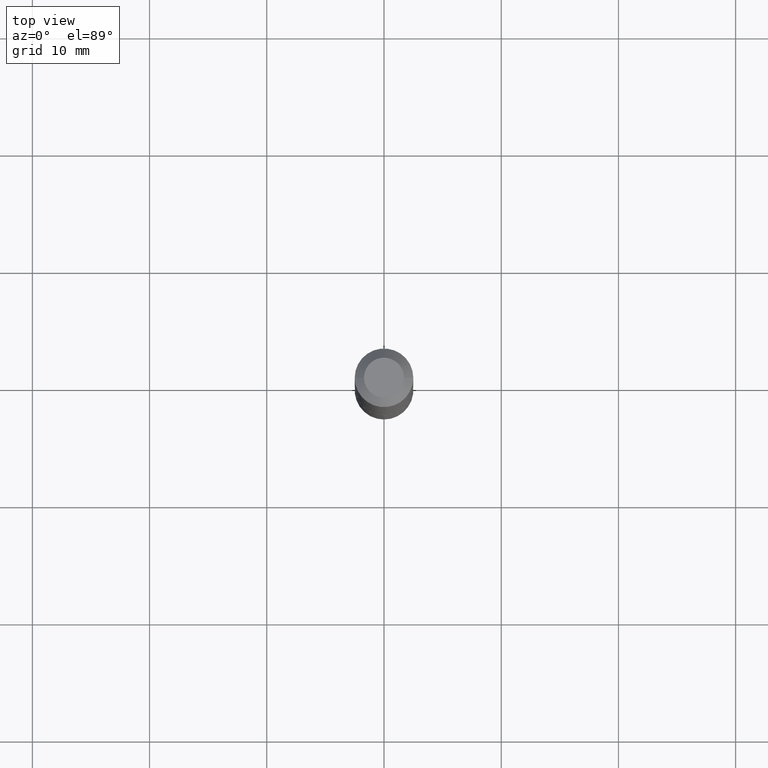
[diagram: clean part render]
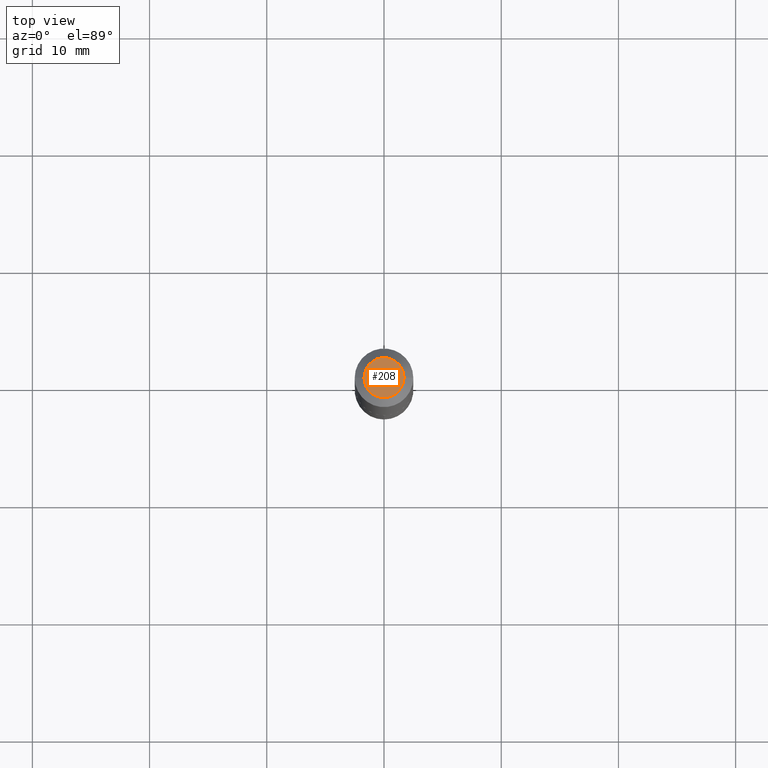
[diagram: same view with one face highlighted and labeled with its STEP entity id]
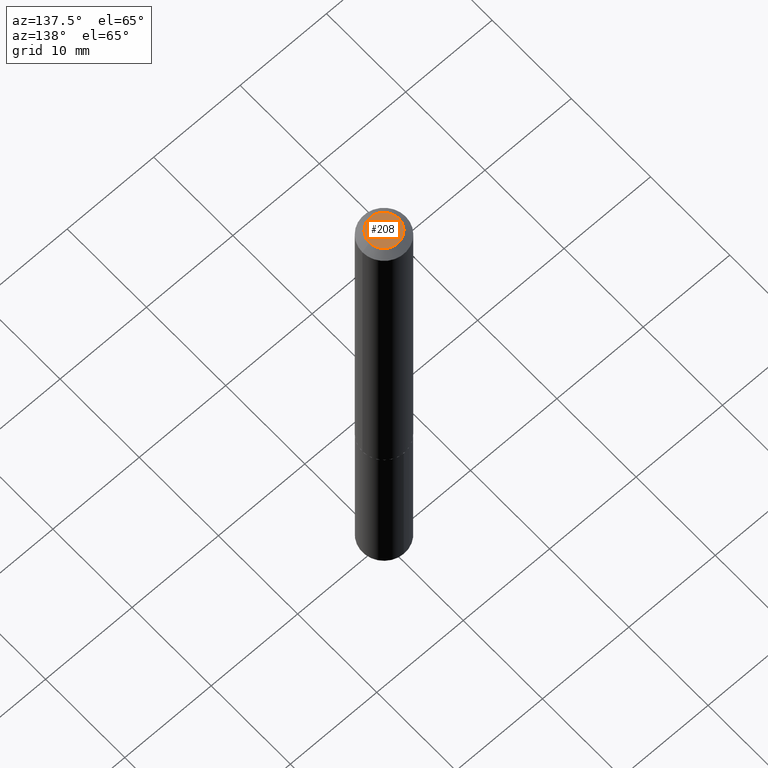
[diagram: same view with one face highlighted and labeled with its STEP entity id]
A machine part, top view. The second image highlights one B-rep face of the part: STEP entity #208.
A second angle (auxiliary view) of the same face is appended — the face is thin or edge-on in the first view.
In plain terms, the highlighted planar face has unit normal (0, -0, -1).
Its self-contained STEP definition (entity closure, byte-faithful):
#5 = AXIS2_PLACEMENT_3D ( 'NONE', #61, #327, #268 ) ;
#22 = PLANE ( 'NONE',  #104 ) ;
#47 = DIRECTION ( 'NONE',  ( -2.445468806185136597E-29, 3.491481338843145583E-15, 1.000000000000000000 ) ) ;
#51 = CIRCLE ( 'NONE', #5, 0.06719999999999999585 ) ;
#61 = CARTESIAN_POINT ( 'NONE',  ( -5.989671091818665474E-48, 8.551662891793964028E-34, 2.449293598294711584E-19 ) ) ;
#80 = VERTEX_POINT ( 'NONE', #190 ) ;
#93 = EDGE_CURVE ( 'NONE', #107, #80, #344, .T. ) ;
#101 = DIRECTION ( 'NONE',  ( -1.000000000000000000, 6.982962677686265922E-15, -4.876176775795935793E-29 ) ) ;
#103 = DIRECTION ( 'NONE',  ( 1.000000000000000000, -6.982962677686266711E-15, 4.876163892769828153E-29 ) ) ;
#104 = AXIS2_PLACEMENT_3D ( 'NONE', #144, #373, #101 ) ;
#106 = CARTESIAN_POINT ( 'NONE',  ( -5.989671091818665474E-48, 8.551662891793964028E-34, 2.449293598294711584E-19 ) ) ;
#107 = VERTEX_POINT ( 'NONE', #319 ) ;
#112 = EDGE_LOOP ( 'NONE', ( #236, #169 ) ) ;
#144 = CARTESIAN_POINT ( 'NONE',  ( -2.994835545909332737E-48, 4.275831445896982014E-34, 1.224646799147355792E-19 ) ) ;
#165 = FACE_OUTER_BOUND ( 'NONE', #112, .T. ) ;
#169 = ORIENTED_EDGE ( 'NONE', *, *, #93, .T. ) ;
#190 = CARTESIAN_POINT ( 'NONE',  ( -0.06719999999999999585, 5.238094878599405854E-16, 2.449293598259989474E-19 ) ) ;
#208 = ADVANCED_FACE ( 'NONE', ( #165 ), #22, .F. ) ;
#236 = ORIENTED_EDGE ( 'NONE', *, *, #336, .T. ) ;
#268 = DIRECTION ( 'NONE',  ( 1.000000000000000000, -6.982962677686266711E-15, 4.876163892769828153E-29 ) ) ;
#319 = CARTESIAN_POINT ( 'NONE',  ( 0.06719999999999999585, -6.227751425848516752E-16, 2.449293598332888811E-19 ) ) ;
#327 = DIRECTION ( 'NONE',  ( -2.445468806185136597E-29, 3.491481338843145583E-15, 1.000000000000000000 ) ) ;
#336 = EDGE_CURVE ( 'NONE', #80, #107, #51, .T. ) ;
#344 = CIRCLE ( 'NONE', #366, 0.06719999999999999585 ) ;
#366 = AXIS2_PLACEMENT_3D ( 'NONE', #106, #47, #103 ) ;
#373 = DIRECTION ( 'NONE',  ( 2.438088387897960049E-29, -3.491481338843145188E-15, -1.000000000000000000 ) ) ;